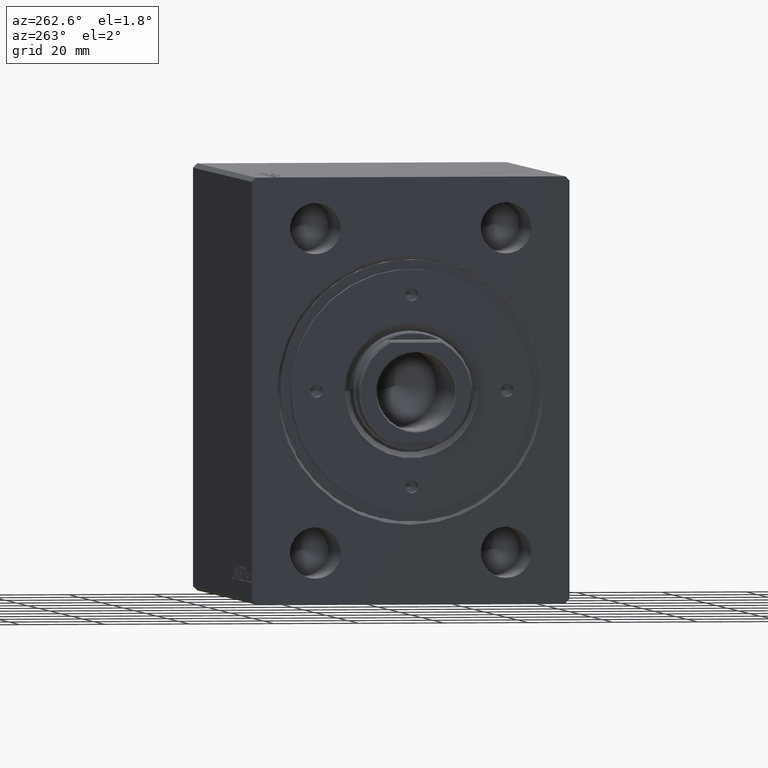
[diagram: clean part render]
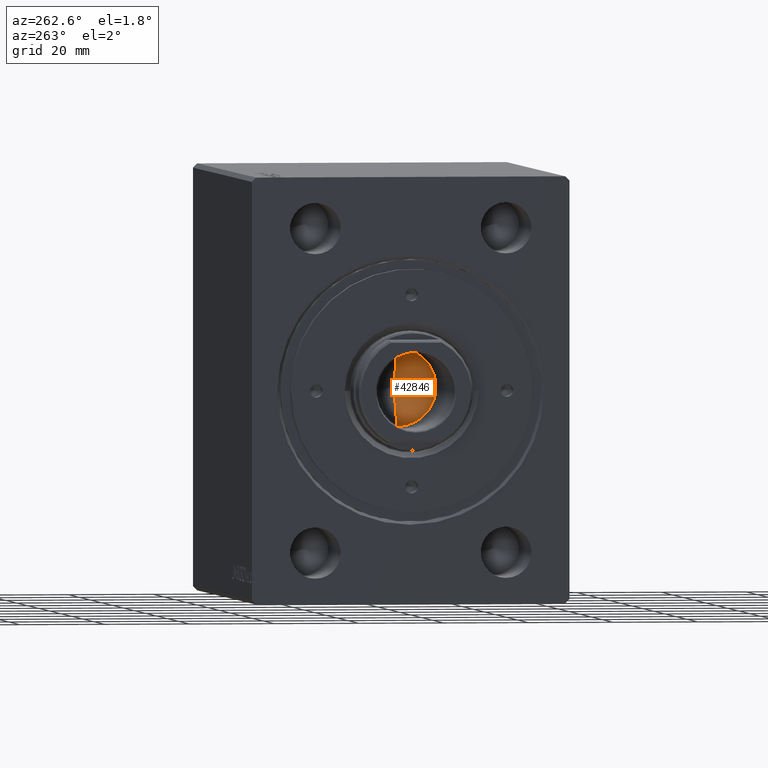
[diagram: same view with one face highlighted and labeled with its STEP entity id]
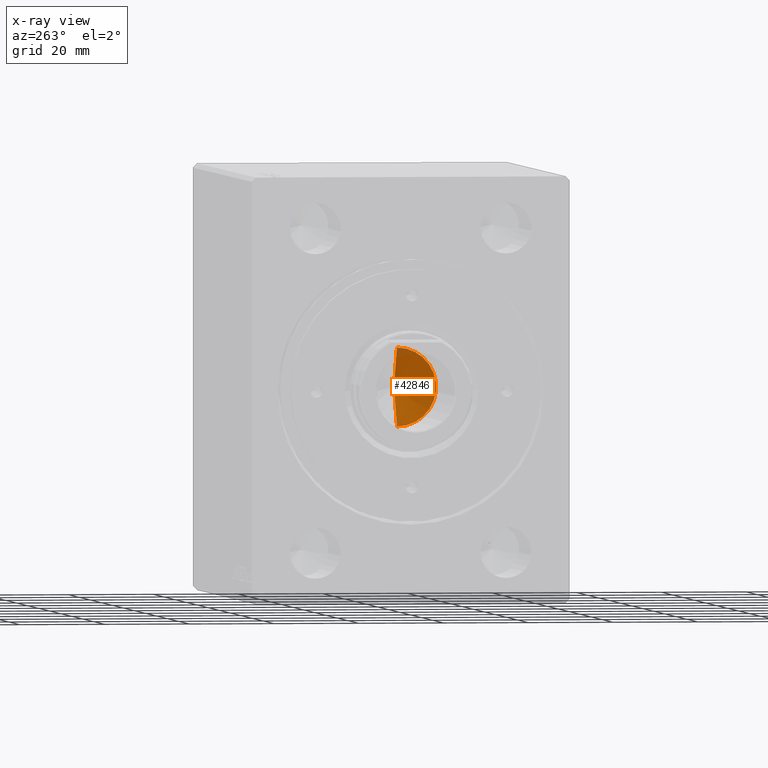
[diagram: x-ray of the same camera — body ghosted, the highlighted face saturated]
A machine part, auxiliary view. The second image highlights one B-rep face of the part: STEP entity #42846.
The next image is the same camera in x-ray: the body ghosted, the highlighted face saturated — about 4% of this face is hidden behind the body in this view.
In plain terms, the highlighted conical surface has half-angle 59 deg.
Its self-contained STEP definition (entity closure, byte-faithful):
#386 = EDGE_CURVE ( 'NONE', #26032, #6957, #2410, .T. ) ;
#1909 = VECTOR ( 'NONE', #8209, 1000.000000000000000 ) ;
#2410 = LINE ( 'NONE', #19969, #33413 ) ;
#2510 = VERTEX_POINT ( 'NONE', #37069 ) ;
#3484 = ORIENTED_EDGE ( 'NONE', *, *, #21319, .T. ) ;
#3699 = ORIENTED_EDGE ( 'NONE', *, *, #386, .T. ) ;
#5154 = CARTESIAN_POINT ( 'NONE',  ( 0.000000000000000000, 0.000000000000000000, 64.20000000000000284 ) ) ;
#5595 = CIRCLE ( 'NONE', #36138, 9.249999999999994671 ) ;
#6109 = EDGE_LOOP ( 'NONE', ( #23312, #3699, #3484 ) ) ;
#6957 = VERTEX_POINT ( 'NONE', #36633 ) ;
#8209 = DIRECTION ( 'NONE',  ( 0.8571673007021117785, 0.000000000000000000, 0.5150380749100550437 ) ) ;
#8944 = DIRECTION ( 'NONE',  ( 1.000000000000000000, 0.000000000000000000, 0.000000000000000000 ) ) ;
#9308 = DIRECTION ( 'NONE',  ( -0.8571673007021117785, 1.049727191138617956E-16, 0.5150380749100550437 ) ) ;
#11554 = CARTESIAN_POINT ( 'NONE',  ( 9.249999999999994671, 0.000000000000000000, 64.20000000000000284 ) ) ;
#19969 = CARTESIAN_POINT ( 'NONE',  ( -9.249999999999994671, 1.132798289211300909E-15, 64.20000000000000284 ) ) ;
#21319 = EDGE_CURVE ( 'NONE', #6957, #2510, #5595, .T. ) ;
#23312 = ORIENTED_EDGE ( 'NONE', *, *, #24568, .F. ) ;
#24568 = EDGE_CURVE ( 'NONE', #26032, #2510, #38690, .T. ) ;
#26032 = VERTEX_POINT ( 'NONE', #39465 ) ;
#28402 = CARTESIAN_POINT ( 'NONE',  ( 0.000000000000000000, 0.000000000000000000, 64.20000000000000284 ) ) ;
#33413 = VECTOR ( 'NONE', #9308, 1000.000000000000000 ) ;
#33679 = AXIS2_PLACEMENT_3D ( 'NONE', #5154, #43187, #8944 ) ;
#35292 = DIRECTION ( 'NONE',  ( -0.000000000000000000, -0.000000000000000000, 1.000000000000000000 ) ) ;
#36138 = AXIS2_PLACEMENT_3D ( 'NONE', #28402, #35292, #42632 ) ;
#36633 = CARTESIAN_POINT ( 'NONE',  ( -9.249999999999994671, 1.132798289211300909E-15, 64.20000000000000284 ) ) ;
#37069 = CARTESIAN_POINT ( 'NONE',  ( 9.249999999999994671, 0.000000000000000000, 64.20000000000000284 ) ) ;
#37937 = CONICAL_SURFACE ( 'NONE', #33679, 9.249999999999994671, 1.029744258676653423 ) ;
#38690 = LINE ( 'NONE', #11554, #1909 ) ;
#39416 = FACE_OUTER_BOUND ( 'NONE', #6109, .T. ) ;
#39465 = CARTESIAN_POINT ( 'NONE',  ( -1.046994375366439223E-14, 0.000000000000000000, 58.64203927399506711 ) ) ;
#42632 = DIRECTION ( 'NONE',  ( 1.000000000000000000, 0.000000000000000000, 0.000000000000000000 ) ) ;
#42846 = ADVANCED_FACE ( 'NONE', ( #39416 ), #37937, .F. ) ;
#43187 = DIRECTION ( 'NONE',  ( -0.000000000000000000, -0.000000000000000000, 1.000000000000000000 ) ) ;